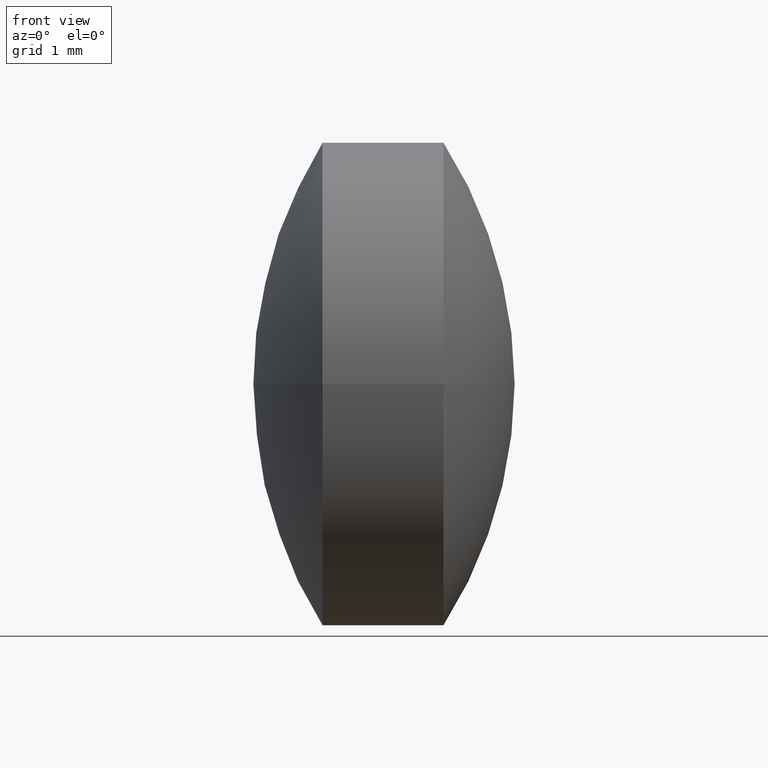
[diagram: clean part render]
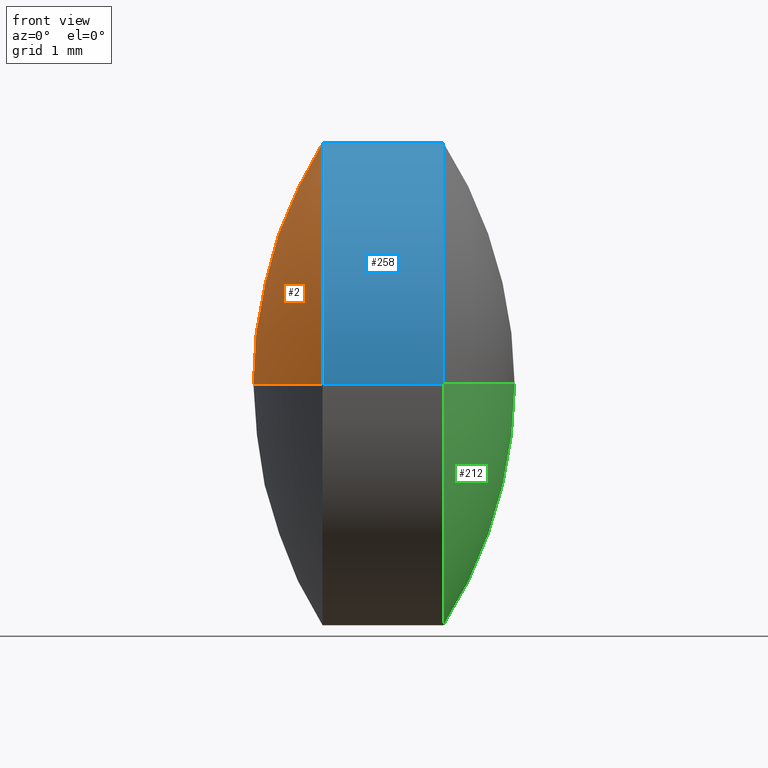
[diagram: same view with three faces highlighted in distinct colors, each labeled with its STEP entity id]
A machine part, front view with three faces highlighted in distinct colors.
Their STEP definitions:

[orange] entity #2 — the highlighted spherical surface has radius 3.784 mm.
#2 = ADVANCED_FACE ( 'NONE', ( #127 ), #168, .T. ) ;
#11 = VERTEX_POINT ( 'NONE', #222 ) ;
#24 = CARTESIAN_POINT ( 'NONE',  ( 12.92394828561172600, 5.242101976729416400, 0.0000000000000000000 ) ) ;
#42 = CIRCLE ( 'NONE', #114, 2.000000000000032900 ) ;
#43 = DIRECTION ( 'NONE',  ( 0.0000000000000000000, 0.0000000000000000000, -1.000000000000000000 ) ) ;
#45 = AXIS2_PLACEMENT_3D ( 'NONE', #24, #207, #76 ) ;
#52 = AXIS2_PLACEMENT_3D ( 'NONE', #274, #43, #61 ) ;
#61 = DIRECTION ( 'NONE',  ( 5.776265727531612200E-014, 1.000000000000000000, 0.0000000000000000000 ) ) ;
#69 = CIRCLE ( 'NONE', #90, 3.784021862624418200 ) ;
#76 = DIRECTION ( 'NONE',  ( 0.0000000000000000000, 1.000000000000000000, 1.224646799147353200E-016 ) ) ;
#90 = AXIS2_PLACEMENT_3D ( 'NONE', #238, #224, #250 ) ;
#105 = ORIENTED_EDGE ( 'NONE', *, *, #282, .T. ) ;
#114 = AXIS2_PLACEMENT_3D ( 'NONE', #162, #291, #160 ) ;
#118 = ORIENTED_EDGE ( 'NONE', *, *, #171, .F. ) ;
#127 = FACE_OUTER_BOUND ( 'NONE', #153, .T. ) ;
#138 = VERTEX_POINT ( 'NONE', #178 ) ;
#146 = VERTEX_POINT ( 'NONE', #251 ) ;
#153 = EDGE_LOOP ( 'NONE', ( #118, #105, #280 ) ) ;
#160 = DIRECTION ( 'NONE',  ( -5.811323644522207800E-014, -1.000000000000000000, 0.0000000000000000000 ) ) ;
#162 = CARTESIAN_POINT ( 'NONE',  ( 9.711656042240909100, 5.242101976729382600, 0.0000000000000000000 ) ) ;
#168 = SPHERICAL_SURFACE ( 'NONE', #52, 3.784021862624419100 ) ;
#171 = EDGE_CURVE ( 'NONE', #11, #146, #177, .T. ) ;
#177 = CIRCLE ( 'NONE', #45, 3.784021862624419100 ) ;
#178 = CARTESIAN_POINT ( 'NONE',  ( 9.711656042241026300, 7.242101976729417200, 0.0000000000000000000 ) ) ;
#204 = EDGE_CURVE ( 'NONE', #138, #146, #69, .T. ) ;
#207 = DIRECTION ( 'NONE',  ( 7.081411840868978900E-030, 1.224646799147353200E-016, -1.000000000000000000 ) ) ;
#222 = CARTESIAN_POINT ( 'NONE',  ( 9.711656042240793600, 3.242101976729567800, -2.449293598294747300E-016 ) ) ;
#224 = DIRECTION ( 'NONE',  ( 0.0000000000000000000, 0.0000000000000000000, 1.000000000000000000 ) ) ;
#238 = CARTESIAN_POINT ( 'NONE',  ( 12.92394828561172600, 5.242101976729416400, 0.0000000000000000000 ) ) ;
#250 = DIRECTION ( 'NONE',  ( 1.000000000000000000, 0.0000000000000000000, 0.0000000000000000000 ) ) ;
#251 = CARTESIAN_POINT ( 'NONE',  ( 9.139926422987308300, 5.242101976729635700, 0.0000000000000000000 ) ) ;
#274 = CARTESIAN_POINT ( 'NONE',  ( 12.92394828561172600, 5.242101976729416400, 0.0000000000000000000 ) ) ;
#280 = ORIENTED_EDGE ( 'NONE', *, *, #204, .T. ) ;
#282 = EDGE_CURVE ( 'NONE', #11, #138, #42, .T. ) ;
#291 = DIRECTION ( 'NONE',  ( -1.000000000000000000, 5.782411586589156700E-014, -0.0000000000000000000 ) ) ;

[blue] entity #258 — the highlighted cylindrical surface (partial cylindrical patch) has radius 2 mm, axis along (-1, 0, -0).
#11 = VERTEX_POINT ( 'NONE', #222 ) ;
#14 = DIRECTION ( 'NONE',  ( -1.000000000000000000, 5.782411586589156700E-014, -0.0000000000000000000 ) ) ;
#37 = CARTESIAN_POINT ( 'NONE',  ( 10.71165604224090900, 5.242101976729324900, 0.0000000000000000000 ) ) ;
#39 = VERTEX_POINT ( 'NONE', #149 ) ;
#42 = CIRCLE ( 'NONE', #114, 2.000000000000032900 ) ;
#44 = VERTEX_POINT ( 'NONE', #197 ) ;
#59 = LINE ( 'NONE', #277, #290 ) ;
#62 = AXIS2_PLACEMENT_3D ( 'NONE', #37, #196, #198 ) ;
#66 = CARTESIAN_POINT ( 'NONE',  ( 9.139926422987191000, 3.242101976729353700, 0.0000000000000000000 ) ) ;
#72 = DIRECTION ( 'NONE',  ( -1.000000000000000000, 5.782411586589156700E-014, -0.0000000000000000000 ) ) ;
#103 = CYLINDRICAL_SURFACE ( 'NONE', #268, 2.000000000000062200 ) ;
#110 = ORIENTED_EDGE ( 'NONE', *, *, #282, .F. ) ;
#111 = ORIENTED_EDGE ( 'NONE', *, *, #200, .T. ) ;
#114 = AXIS2_PLACEMENT_3D ( 'NONE', #162, #291, #160 ) ;
#120 = CIRCLE ( 'NONE', #62, 2.000000000000091000 ) ;
#130 = EDGE_CURVE ( 'NONE', #39, #138, #59, .T. ) ;
#132 = DIRECTION ( 'NONE',  ( -5.811323644522123300E-014, -1.000000000000000000, 0.0000000000000000000 ) ) ;
#138 = VERTEX_POINT ( 'NONE', #178 ) ;
#149 = CARTESIAN_POINT ( 'NONE',  ( 10.71165604224102300, 7.242101976729364800, 2.449293598294755200E-016 ) ) ;
#152 = DIRECTION ( 'NONE',  ( -1.000000000000000000, 5.782411586589156700E-014, -0.0000000000000000000 ) ) ;
#156 = CARTESIAN_POINT ( 'NONE',  ( 9.139926422987308300, 5.242101976729416400, 0.0000000000000000000 ) ) ;
#160 = DIRECTION ( 'NONE',  ( -5.811323644522207800E-014, -1.000000000000000000, 0.0000000000000000000 ) ) ;
#162 = CARTESIAN_POINT ( 'NONE',  ( 9.711656042240909100, 5.242101976729382600, 0.0000000000000000000 ) ) ;
#178 = CARTESIAN_POINT ( 'NONE',  ( 9.711656042241026300, 7.242101976729417200, 0.0000000000000000000 ) ) ;
#184 = LINE ( 'NONE', #66, #303 ) ;
#195 = FACE_OUTER_BOUND ( 'NONE', #228, .T. ) ;
#196 = DIRECTION ( 'NONE',  ( -1.000000000000000000, 5.782411586589156700E-014, -0.0000000000000000000 ) ) ;
#197 = CARTESIAN_POINT ( 'NONE',  ( 10.71165604224079200, 3.242101976729284000, 0.0000000000000000000 ) ) ;
#198 = DIRECTION ( 'NONE',  ( -5.811323644522038700E-014, -1.000000000000000000, 0.0000000000000000000 ) ) ;
#200 = EDGE_CURVE ( 'NONE', #44, #39, #120, .T. ) ;
#217 = EDGE_CURVE ( 'NONE', #44, #11, #184, .T. ) ;
#222 = CARTESIAN_POINT ( 'NONE',  ( 9.711656042240793600, 3.242101976729567800, -2.449293598294747300E-016 ) ) ;
#228 = EDGE_LOOP ( 'NONE', ( #111, #271, #110, #249 ) ) ;
#249 = ORIENTED_EDGE ( 'NONE', *, *, #217, .F. ) ;
#258 = ADVANCED_FACE ( 'NONE', ( #195 ), #103, .T. ) ;
#268 = AXIS2_PLACEMENT_3D ( 'NONE', #156, #152, #132 ) ;
#271 = ORIENTED_EDGE ( 'NONE', *, *, #130, .T. ) ;
#277 = CARTESIAN_POINT ( 'NONE',  ( 9.139926422987423700, 7.242101976729477600, 2.449293598294782300E-016 ) ) ;
#282 = EDGE_CURVE ( 'NONE', #11, #138, #42, .T. ) ;
#290 = VECTOR ( 'NONE', #72, 1000.000000000000000 ) ;
#291 = DIRECTION ( 'NONE',  ( -1.000000000000000000, 5.782411586589156700E-014, -0.0000000000000000000 ) ) ;
#303 = VECTOR ( 'NONE', #14, 1000.000000000000000 ) ;

[green] entity #212 — the highlighted toroidal blend (fillet) surface has major radius 0.0265 mm and minor (blend) radius 3.784 mm.
#15 = ORIENTED_EDGE ( 'NONE', *, *, #183, .F. ) ;
#16 = TOROIDAL_SURFACE ( 'NONE', #218, -0.02647124634640457200, 3.784021862624245900 ) ;
#17 = CARTESIAN_POINT ( 'NONE',  ( 7.515997151722468000, 5.268573223075914100, 0.0000000000000000000 ) ) ;
#25 = CARTESIAN_POINT ( 'NONE',  ( 7.515997151722466200, 5.242101976729509600, 0.0000000000000000000 ) ) ;
#28 = ORIENTED_EDGE ( 'NONE', *, *, #267, .F. ) ;
#33 = AXIS2_PLACEMENT_3D ( 'NONE', #17, #126, #91 ) ;
#39 = VERTEX_POINT ( 'NONE', #149 ) ;
#44 = VERTEX_POINT ( 'NONE', #197 ) ;
#48 = CARTESIAN_POINT ( 'NONE',  ( 7.515997151722464400, 5.215630730383105100, -3.241792710756542700E-018 ) ) ;
#50 = CARTESIAN_POINT ( 'NONE',  ( 10.71165604224090900, 5.242101976729324900, 0.0000000000000000000 ) ) ;
#60 = EDGE_LOOP ( 'NONE', ( #28, #124, #15 ) ) ;
#78 = AXIS2_PLACEMENT_3D ( 'NONE', #50, #159, #101 ) ;
#91 = DIRECTION ( 'NONE',  ( -1.000000000000000000, 0.0000000000000000000, 0.0000000000000000000 ) ) ;
#101 = DIRECTION ( 'NONE',  ( -5.811323644522038700E-014, -1.000000000000000000, 0.0000000000000000000 ) ) ;
#109 = CIRCLE ( 'NONE', #33, 3.784021862624245900 ) ;
#113 = EDGE_CURVE ( 'NONE', #182, #44, #109, .T. ) ;
#124 = ORIENTED_EDGE ( 'NONE', *, *, #113, .T. ) ;
#126 = DIRECTION ( 'NONE',  ( 0.0000000000000000000, -0.0000000000000000000, -1.000000000000000000 ) ) ;
#134 = DIRECTION ( 'NONE',  ( -1.000000000000000000, 5.782411586589156700E-014, -0.0000000000000000000 ) ) ;
#149 = CARTESIAN_POINT ( 'NONE',  ( 10.71165604224102300, 7.242101976729364800, 2.449293598294755200E-016 ) ) ;
#159 = DIRECTION ( 'NONE',  ( -1.000000000000000000, 5.782411586589156700E-014, -0.0000000000000000000 ) ) ;
#182 = VERTEX_POINT ( 'NONE', #227 ) ;
#183 = EDGE_CURVE ( 'NONE', #39, #44, #255, .T. ) ;
#197 = CARTESIAN_POINT ( 'NONE',  ( 10.71165604224079200, 3.242101976729284000, 0.0000000000000000000 ) ) ;
#212 = ADVANCED_FACE ( 'NONE', ( #239 ), #16, .T. ) ;
#218 = AXIS2_PLACEMENT_3D ( 'NONE', #25, #134, #269 ) ;
#227 = CARTESIAN_POINT ( 'NONE',  ( 11.29992642298734200, 5.242101976729291100, 0.0000000000000000000 ) ) ;
#230 = CIRCLE ( 'NONE', #246, 3.784021862624245900 ) ;
#239 = FACE_OUTER_BOUND ( 'NONE', #60, .T. ) ;
#246 = AXIS2_PLACEMENT_3D ( 'NONE', #48, #300, #299 ) ;
#255 = CIRCLE ( 'NONE', #78, 2.000000000000091000 ) ;
#267 = EDGE_CURVE ( 'NONE', #182, #39, #230, .T. ) ;
#269 = DIRECTION ( 'NONE',  ( -5.782411586589156700E-014, -1.000000000000000000, 0.0000000000000000000 ) ) ;
#299 = DIRECTION ( 'NONE',  ( 0.0000000000000000000, -1.000000000000000000, -1.224646799147353200E-016 ) ) ;
#300 = DIRECTION ( 'NONE',  ( -7.081411840868978900E-030, -1.224646799147353200E-016, 1.000000000000000000 ) ) ;